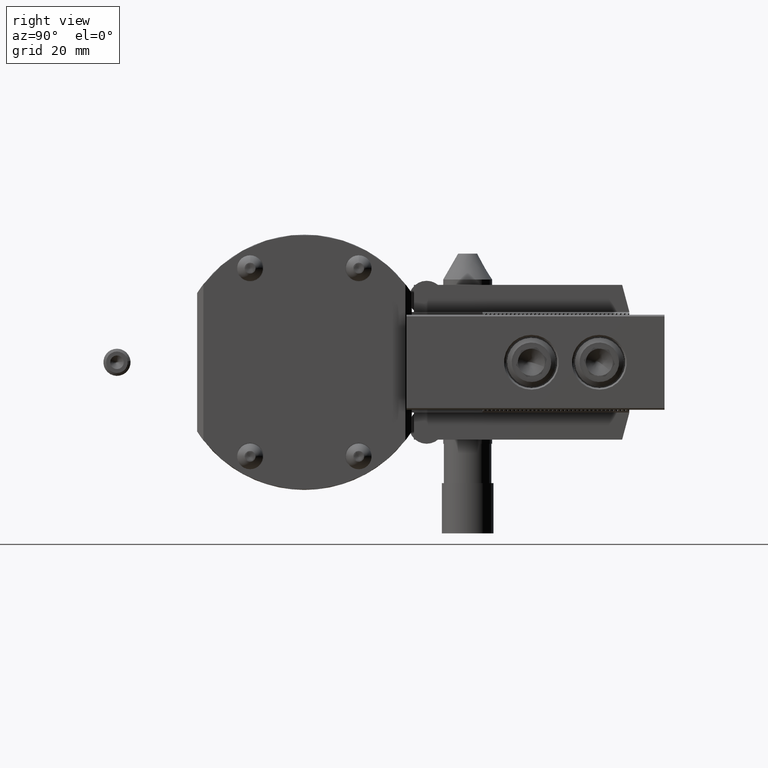
[diagram: clean part render]
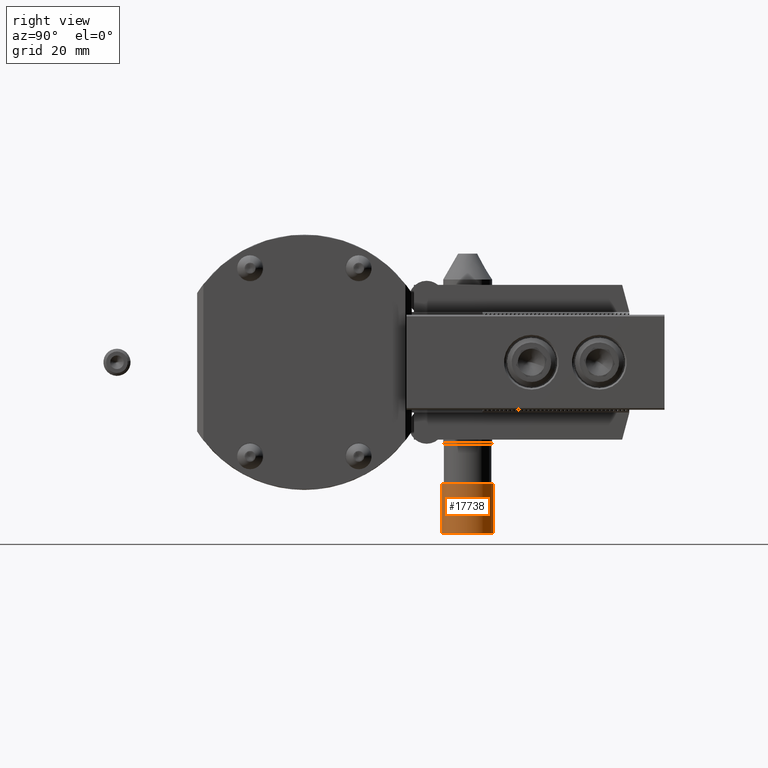
[diagram: same view with one face highlighted and labeled with its STEP entity id]
A machine part, right view. The second image highlights one B-rep face of the part: STEP entity #17738.
In plain terms, the highlighted cylindrical surface (bore or boss wall) has radius 9.5 mm, axis along (0, 0, -1).
Its self-contained STEP definition (entity closure, byte-faithful):
#83=CYLINDRICAL_SURFACE('',#19024,9.5);
#8768=ORIENTED_EDGE('',*,*,#12089,.F.);
#8769=ORIENTED_EDGE('',*,*,#12091,.T.);
#12089=EDGE_CURVE('',#14041,#14041,#14777,.T.);
#12091=EDGE_CURVE('',#14043,#14043,#14779,.T.);
#14041=VERTEX_POINT('',#27481);
#14043=VERTEX_POINT('',#27487);
#14777=CIRCLE('',#19021,9.5);
#14779=CIRCLE('',#19025,9.5);
#15609=EDGE_LOOP('',(#8768));
#15610=EDGE_LOOP('',(#8769));
#16717=FACE_BOUND('',#15609,.T.);
#16718=FACE_BOUND('',#15610,.T.);
#17738=ADVANCED_FACE('',(#16717,#16718),#83,.T.);
#19021=AXIS2_PLACEMENT_3D('',#27480,#22524,#22525);
#19024=AXIS2_PLACEMENT_3D('',#27485,#22530,#22531);
#19025=AXIS2_PLACEMENT_3D('',#27486,#22532,#22533);
#22524=DIRECTION('',(-2.69630192214213E-33,-1.50059267631318E-17,1.));
#22525=DIRECTION('',(-5.78007273927946E-51,-1.,-1.50059267631318E-17));
#22530=DIRECTION('',(2.69630192214213E-33,1.50059267631318E-17,-1.));
#22531=DIRECTION('',(-5.78007273927946E-51,-1.,-1.50059267631318E-17));
#22532=DIRECTION('',(-2.69630192214213E-33,-1.50059267631318E-17,1.));
#22533=DIRECTION('',(-5.78007273927946E-51,-1.,-1.50059267631318E-17));
#27480=CARTESIAN_POINT('',(-59.5,60.1,-44.5));
#27481=CARTESIAN_POINT('',(-59.5,50.6,-44.5));
#27485=CARTESIAN_POINT('',(-59.5,60.1,46.7343783783784));
#27486=CARTESIAN_POINT('',(-59.5,60.1,-63.));
#27487=CARTESIAN_POINT('',(-59.5,50.6,-63.));